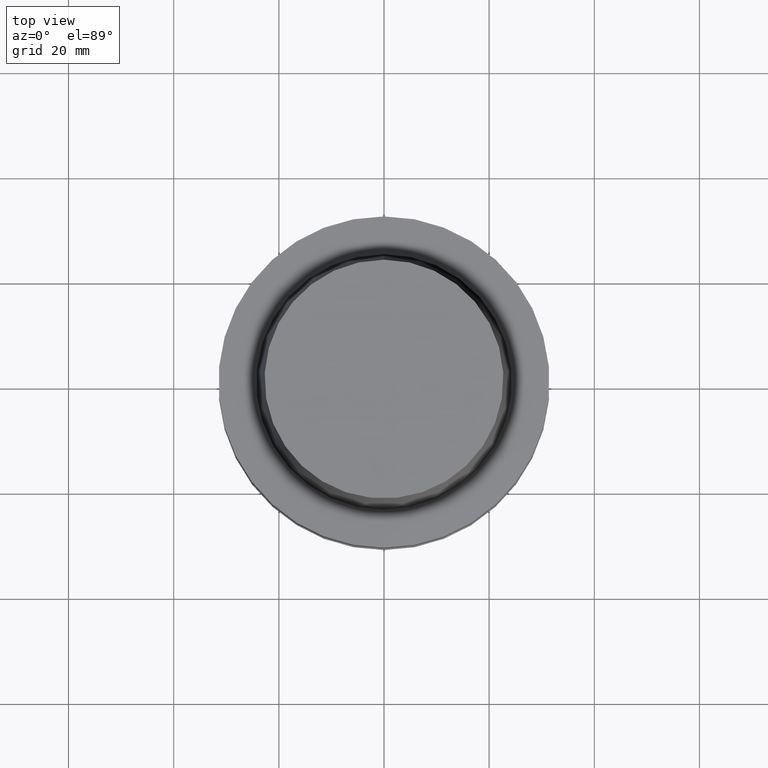
[diagram: clean part render]
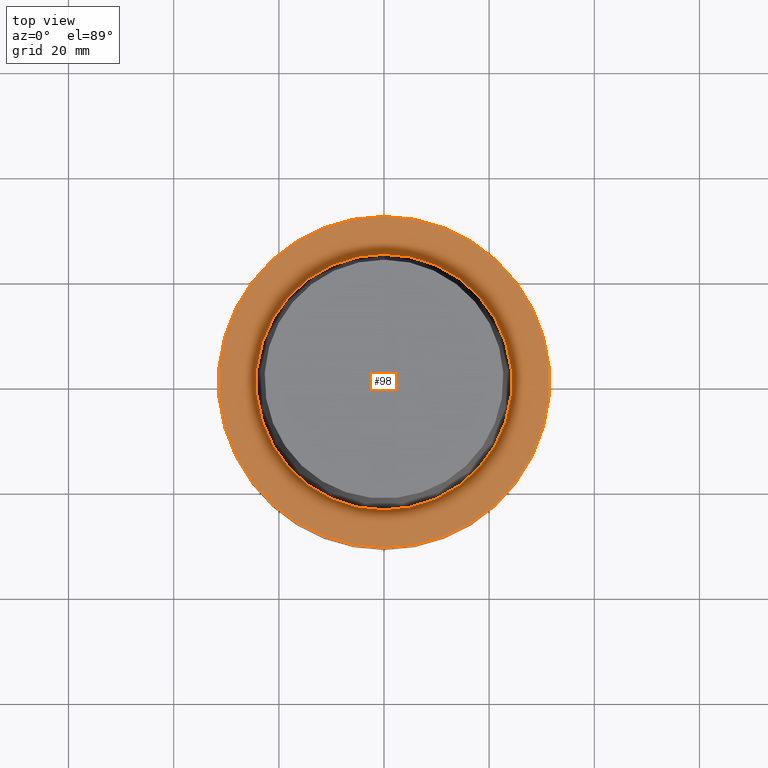
[diagram: same view with one face highlighted and labeled with its STEP entity id]
A machine part, top view. The second image highlights one B-rep face of the part: STEP entity #98.
In plain terms, the highlighted planar face has unit normal (-0, -0, 1).
Its self-contained STEP definition (entity closure, byte-faithful):
#98=ADVANCED_FACE('Unnamed[1]',(#236,#237),#238,.T.);
#108=EDGE_CURVE('Unnamed[1]',#252,#252,#253,.T.);
#132=EDGE_CURVE('Unnamed[1]',#289,#289,#290,.T.);
#236=FACE_BOUND('',#419,.T.);
#237=FACE_OUTER_BOUND('',#420,.T.);
#238=PLANE('',#421);
#252=VERTEX_POINT('',#439);
#253=CIRCLE('',#440,31.5000000000001);
#289=VERTEX_POINT('',#486);
#290=CIRCLE('',#487,24.315);
#419=EDGE_LOOP('',(#618));
#420=EDGE_LOOP('',(#619));
#421=AXIS2_PLACEMENT_3D('',#620,#621,#622);
#439=CARTESIAN_POINT('',(-3.88267476788467E-031,31.5000000000001,3.85763741731417E-015));
#440=AXIS2_PLACEMENT_3D('',#637,#638,#639);
#486=CARTESIAN_POINT('',(-2.99705514225764E-031,24.315,2.97772869212679E-015));
#487=AXIS2_PLACEMENT_3D('',#678,#679,#680);
#618=ORIENTED_EDGE('',*,*,#132,.F.);
#619=ORIENTED_EDGE('',*,*,#108,.T.);
#620=CARTESIAN_POINT('',(-3.43986495507116E-031,27.9075,3.41768305472048E-015));
#621=DIRECTION('',(-6.12323399573677E-017,-1.22464679914735E-016,1.0));
#622=DIRECTION('',(-1.23259516440783E-032,1.0,1.22464679914735E-016));
#637=CARTESIAN_POINT('',(0.0,0.0,0.0));
#638=DIRECTION('',(-6.12323399573677E-017,-1.22464679914735E-016,1.0));
#639=DIRECTION('',(-1.23259516440783E-032,1.0,1.22464679914735E-016));
#678=CARTESIAN_POINT('',(0.0,0.0,0.0));
#679=DIRECTION('',(-6.12323399573677E-017,-1.22464679914735E-016,1.0));
#680=DIRECTION('',(-1.23259516440783E-032,1.0,1.22464679914735E-016));